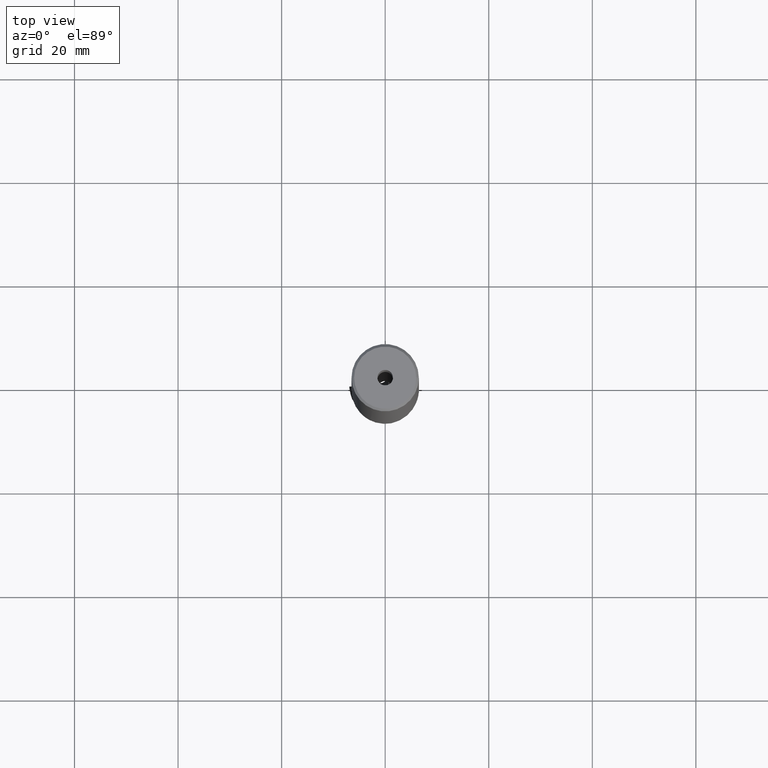
[diagram: clean part render]
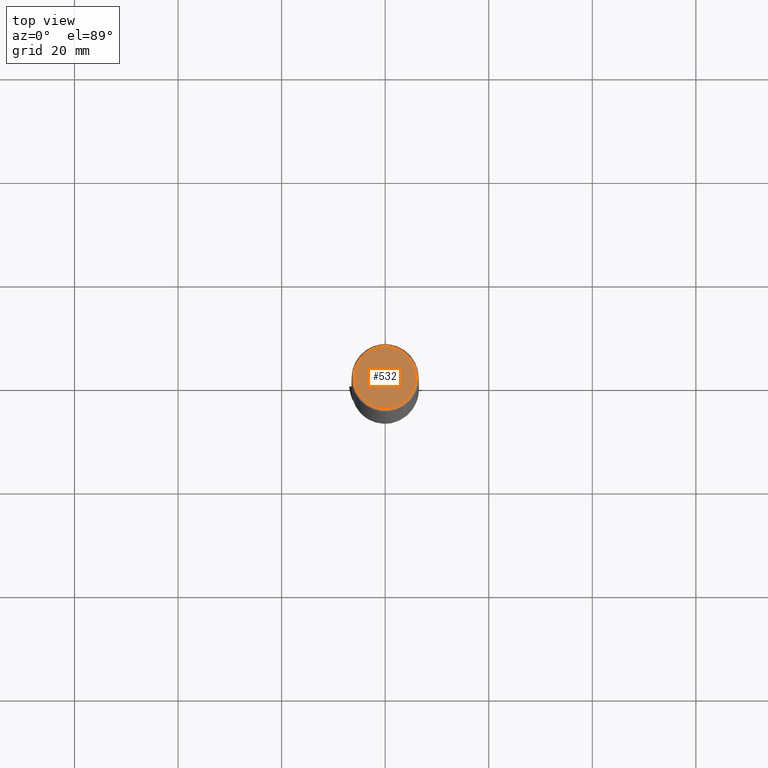
[diagram: same view with one face highlighted and labeled with its STEP entity id]
A machine part, top view. The second image highlights one B-rep face of the part: STEP entity #532.
In plain terms, the highlighted planar face has unit normal (0, 0, 1).
Its self-contained STEP definition (entity closure, byte-faithful):
#532=ADVANCED_FACE('NONE',(#1425,#1426),#1427,.T.);
#546=VERTEX_POINT('NONE',#1442);
#650=VERTEX_POINT('NONE',#1560);
#700=EDGE_CURVE('NONE',#972,#546,#1611,.T.);
#830=VERTEX_POINT('NONE',#1758);
#868=EDGE_CURVE('NONE',#650,#830,#1799,.T.);
#934=EDGE_CURVE('NONE',#546,#972,#1877,.F.);
#972=VERTEX_POINT('NONE',#1919);
#1186=EDGE_CURVE('NONE',#830,#650,#2158,.F.);
#1425=FACE_OUTER_BOUND('',#2435,.T.);
#1426=FACE_BOUND('',#2436,.T.);
#1427=PLANE('',#2437);
#1442=CARTESIAN_POINT('',(-1.49999999999999,0.0,123.001447599703));
#1560=CARTESIAN_POINT('',(-5.99999999999998,0.0,123.001447599703));
#1611=CIRCLE('',#2723,1.49999999999999);
#1758=CARTESIAN_POINT('',(5.99999999999998,7.65404249467094E-016,123.001447599703));
#1799=CIRCLE('',#3204,5.99999999999998);
#1877=CIRCLE('',#3301,1.49999999999999);
#1919=CARTESIAN_POINT('',(1.49999999999999,1.83697019872102E-016,123.001447599703));
#2158=CIRCLE('',#3831,5.99999999999998);
#2435=EDGE_LOOP('',(#4176,#4177));
#2436=EDGE_LOOP('',(#4178,#4179));
#2437=AXIS2_PLACEMENT_3D('',#4180,#4181,#4182);
#2723=AXIS2_PLACEMENT_3D('',#4405,#4406,#4407);
#3204=AXIS2_PLACEMENT_3D('',#4637,#4638,#4639);
#3301=AXIS2_PLACEMENT_3D('',#4786,#4787,#4788);
#3831=AXIS2_PLACEMENT_3D('',#5111,#5112,#5113);
#4176=ORIENTED_EDGE('',*,*,#868,.T.);
#4177=ORIENTED_EDGE('',*,*,#1186,.T.);
#4178=ORIENTED_EDGE('',*,*,#934,.F.);
#4179=ORIENTED_EDGE('',*,*,#700,.F.);
#4180=CARTESIAN_POINT('',(1.52991749876266E-014,0.0,123.001447599703));
#4181=DIRECTION('',(0.0,0.0,1.0));
#4182=DIRECTION('',(1.0,0.0,0.0));
#4405=CARTESIAN_POINT('',(0.0,0.0,123.001447599703));
#4406=DIRECTION('',(0.0,0.0,1.0));
#4407=DIRECTION('',(-1.0,0.0,0.0));
#4637=CARTESIAN_POINT('',(0.0,0.0,123.001447599703));
#4638=DIRECTION('',(0.0,0.0,1.0));
#4639=DIRECTION('',(-1.0,0.0,0.0));
#4786=CARTESIAN_POINT('',(0.0,0.0,123.001447599703));
#4787=DIRECTION('',(0.0,0.0,-1.0));
#4788=DIRECTION('',(-1.0,0.0,0.0));
#5111=CARTESIAN_POINT('',(0.0,0.0,123.001447599703));
#5112=DIRECTION('',(0.0,0.0,-1.0));
#5113=DIRECTION('',(-1.0,0.0,0.0));